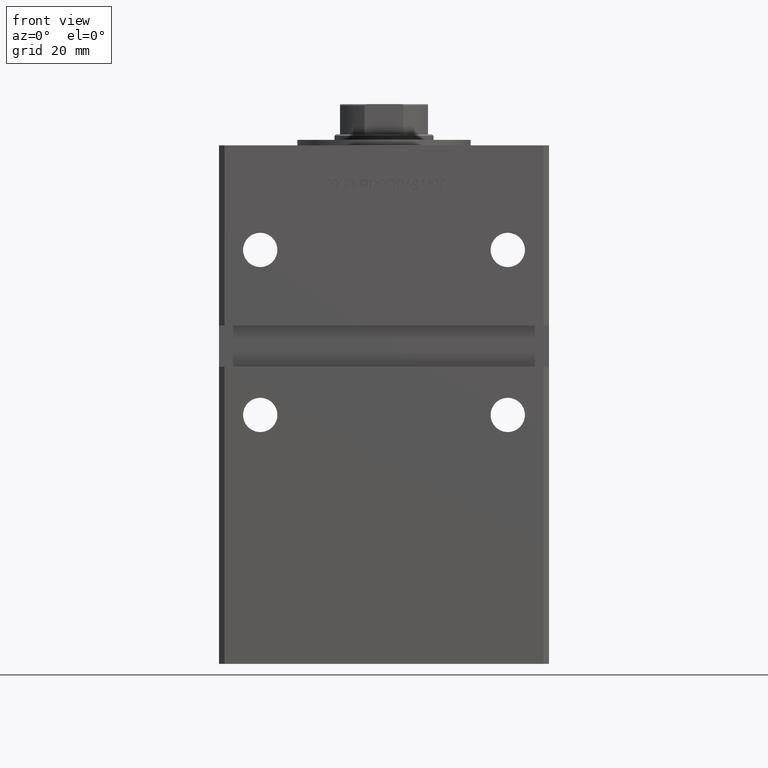
[diagram: clean part render]
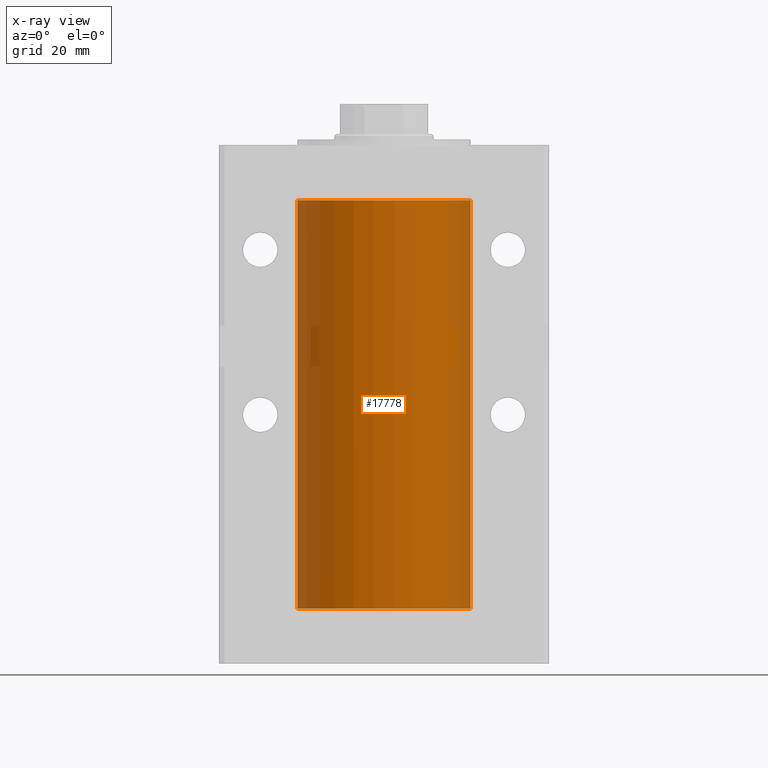
[diagram: x-ray — body ghosted, one internal face saturated and labeled with its STEP entity id]
A machine part, front view, then the same camera in x-ray: the body is ghosted and one INTERNAL B-rep face — a face not visible from any outside direction — is saturated and labeled: STEP entity #17778.
In plain terms, the highlighted cylindrical surface (partial cylindrical patch) has radius 31.5 mm, axis along (-0, -0, -1).
Its self-contained STEP definition (entity closure, byte-faithful):
#215 = CARTESIAN_POINT ( 'NONE',  ( -31.50000000000000000, 0.000000000000000000, 148.5000000000000000 ) ) ;
#705 = EDGE_LOOP ( 'NONE', ( #34506, #29358, #36789, #6067 ) ) ;
#711 = CARTESIAN_POINT ( 'NONE',  ( 0.000000000000000000, 0.000000000000000000, 148.5000000000000000 ) ) ;
#1305 = FACE_OUTER_BOUND ( 'NONE', #705, .T. ) ;
#6067 = ORIENTED_EDGE ( 'NONE', *, *, #52540, .F. ) ;
#7162 = EDGE_CURVE ( 'NONE', #28655, #47294, #50310, .T. ) ;
#12088 = CARTESIAN_POINT ( 'NONE',  ( 31.50000000000000000, 3.857637417314162689E-15, 148.5000000000000000 ) ) ;
#12656 = CARTESIAN_POINT ( 'NONE',  ( 31.50000000000000000, 3.857637417314162689E-15, 148.5000000000000000 ) ) ;
#15457 = VERTEX_POINT ( 'NONE', #35889 ) ;
#15926 = CARTESIAN_POINT ( 'NONE',  ( 31.50000000000000000, 3.857637417314162689E-15, 0.000000000000000000 ) ) ;
#17542 = DIRECTION ( 'NONE',  ( -0.000000000000000000, 0.000000000000000000, 1.000000000000000000 ) ) ;
#17778 = ADVANCED_FACE ( 'NONE', ( #1305 ), #54057, .F. ) ;
#19923 = EDGE_CURVE ( 'NONE', #33623, #28655, #50832, .T. ) ;
#20264 = LINE ( 'NONE', #45915, #32267 ) ;
#22382 = AXIS2_PLACEMENT_3D ( 'NONE', #51197, #47201, #24968 ) ;
#24968 = DIRECTION ( 'NONE',  ( 1.000000000000000000, 0.000000000000000000, 0.000000000000000000 ) ) ;
#27821 = DIRECTION ( 'NONE',  ( -0.000000000000000000, -0.000000000000000000, -1.000000000000000000 ) ) ;
#28655 = VERTEX_POINT ( 'NONE', #12656 ) ;
#29358 = ORIENTED_EDGE ( 'NONE', *, *, #7162, .T. ) ;
#29466 = DIRECTION ( 'NONE',  ( -0.000000000000000000, -0.000000000000000000, -1.000000000000000000 ) ) ;
#32267 = VECTOR ( 'NONE', #37349, 1000.000000000000000 ) ;
#33623 = VERTEX_POINT ( 'NONE', #215 ) ;
#34148 = VECTOR ( 'NONE', #29466, 1000.000000000000000 ) ;
#34506 = ORIENTED_EDGE ( 'NONE', *, *, #19923, .T. ) ;
#35464 = DIRECTION ( 'NONE',  ( 1.000000000000000000, 0.000000000000000000, 0.000000000000000000 ) ) ;
#35889 = CARTESIAN_POINT ( 'NONE',  ( -31.50000000000000000, 0.000000000000000000, 0.000000000000000000 ) ) ;
#35995 = CIRCLE ( 'NONE', #22382, 31.50000000000000000 ) ;
#36281 = AXIS2_PLACEMENT_3D ( 'NONE', #711, #17542, #35464 ) ;
#36641 = DIRECTION ( 'NONE',  ( -1.000000000000000000, 0.000000000000000000, 0.000000000000000000 ) ) ;
#36789 = ORIENTED_EDGE ( 'NONE', *, *, #54353, .F. ) ;
#37349 = DIRECTION ( 'NONE',  ( -0.000000000000000000, -0.000000000000000000, -1.000000000000000000 ) ) ;
#44342 = CARTESIAN_POINT ( 'NONE',  ( 0.000000000000000000, 0.000000000000000000, 148.5000000000000000 ) ) ;
#45915 = CARTESIAN_POINT ( 'NONE',  ( -31.50000000000000000, 0.000000000000000000, 148.5000000000000000 ) ) ;
#47201 = DIRECTION ( 'NONE',  ( -0.000000000000000000, 0.000000000000000000, 1.000000000000000000 ) ) ;
#47294 = VERTEX_POINT ( 'NONE', #15926 ) ;
#50310 = LINE ( 'NONE', #12088, #34148 ) ;
#50832 = CIRCLE ( 'NONE', #36281, 31.50000000000000000 ) ;
#51197 = CARTESIAN_POINT ( 'NONE',  ( 0.000000000000000000, 0.000000000000000000, 0.000000000000000000 ) ) ;
#52540 = EDGE_CURVE ( 'NONE', #33623, #15457, #20264, .T. ) ;
#54057 = CYLINDRICAL_SURFACE ( 'NONE', #54461, 31.50000000000000000 ) ;
#54353 = EDGE_CURVE ( 'NONE', #15457, #47294, #35995, .T. ) ;
#54461 = AXIS2_PLACEMENT_3D ( 'NONE', #44342, #27821, #36641 ) ;